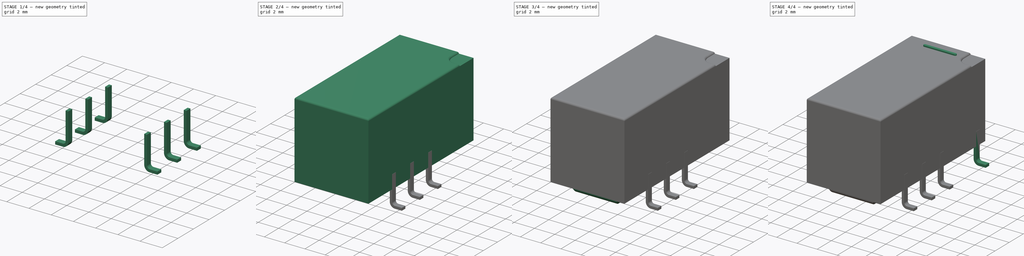
[diagram: build sequence overview — one tinted view per stage of 4, left to right]
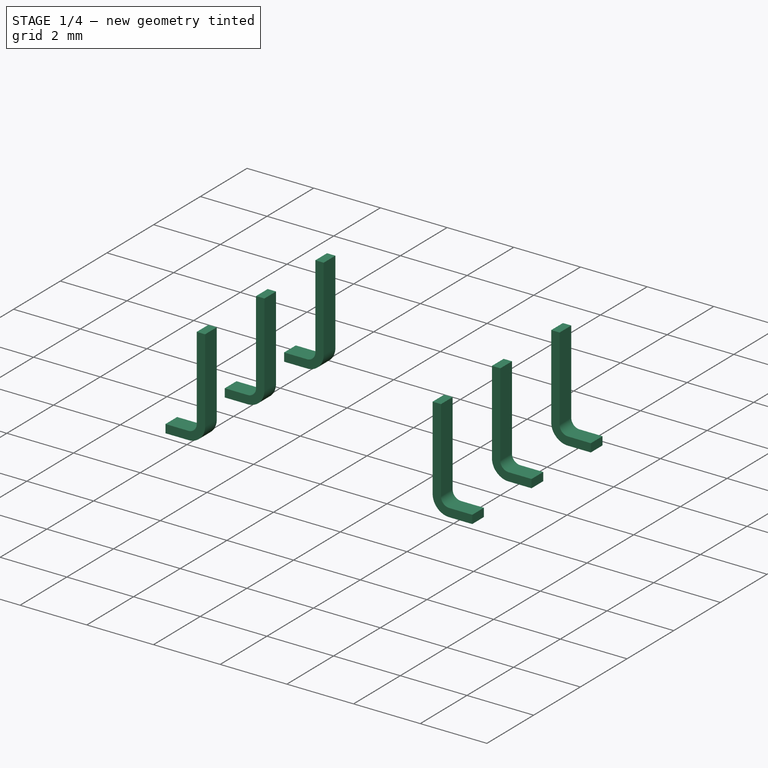
[diagram: stage 1 of 4 — iso view after this stage's code; geometry added in this stage tinted green]
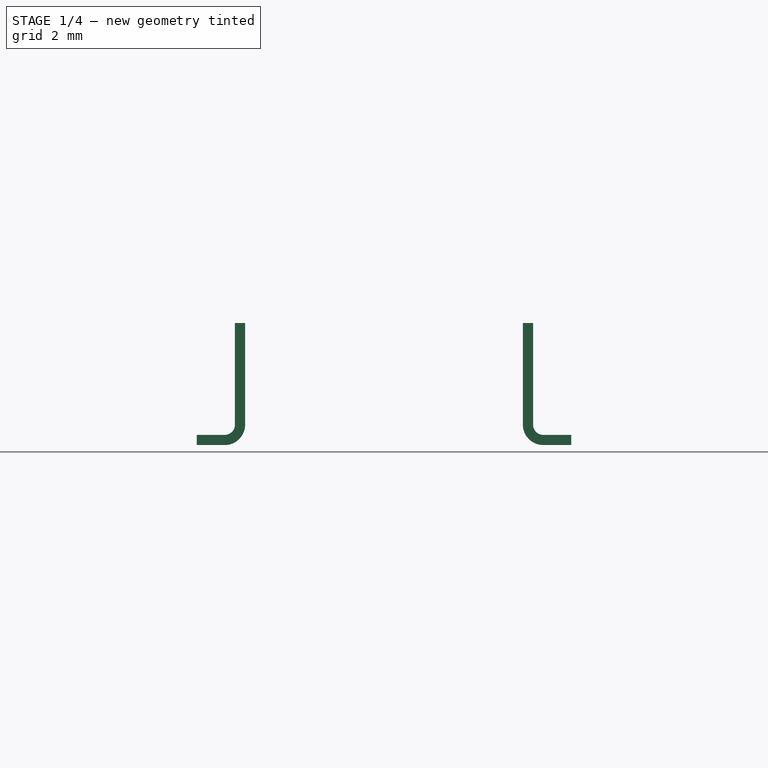
[diagram: stage 1 of 4 — front view after this stage's code; geometry added in this stage tinted green]
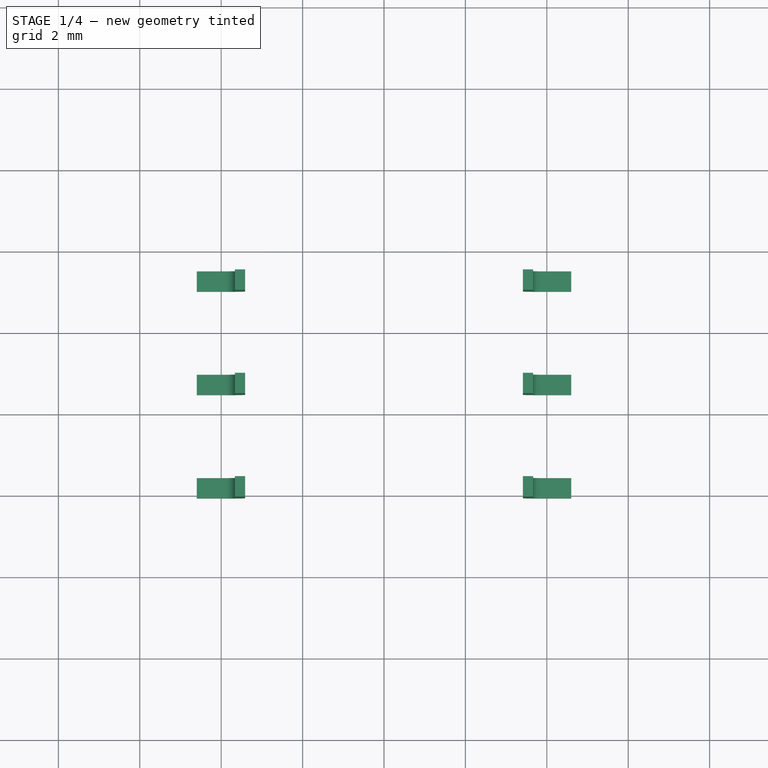
[diagram: stage 1 of 4 — top view after this stage's code; geometry added in this stage tinted green]
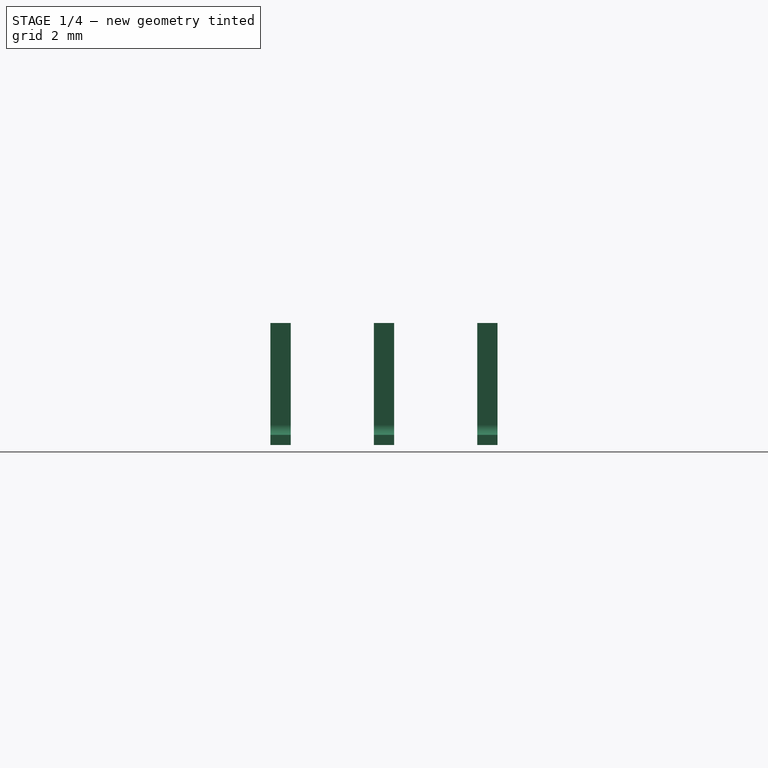
[diagram: stage 1 of 4 — right view after this stage's code; geometry added in this stage tinted green]
FCSTD DOCUMENT  (FreeCAD 0.16R6712 (Git))
Label: Relay_DPDT_Omron_G6S-2F
License: All rights reserved
LicenseURL: http://en.wikipedia.org/wiki/All_rights_reserved
objects: Sketcher::SketchObject×8, PartDesign::Pad×7, Part::Feature×3, PartDesign::Fillet×2, App::DocumentObjectGroup×1, PartDesign::Pocket×1, Part::MultiFuse×1
note: 30 computed .brp shape members not serialized (recipe doc carries the construction recipe); baked Part::Feature solids carry a one-line shape summary decoded from their .brp

FEATURE [Sketcher::SketchObject] Sketch011
  Placement = pos=(0,1.27,0) rot=(1,0,0;1.5708rad)
  expr: Placement.Base.y = 1.27
  sketch-geometry (21):
    g0: LineSegment StartX=-4.6 StartY=0 StartZ=0 EndX=-3.9125 EndY=0 EndZ=0
    g1: LineSegment StartX=-3.9125 StartY=0.25 StartZ=0 EndX=-4.6 EndY=0.25 EndZ=0
    g2: LineSegment StartX=-4.6 StartY=0.25 StartZ=0 EndX=-4.6 EndY=0 EndZ=0
    g3: LineSegment StartX=-3.6625 StartY=3 StartZ=0 EndX=-3.4125 EndY=3 EndZ=0
    g4: LineSegment StartX=-3.4125 StartY=3 StartZ=0 EndX=-3.4125 EndY=0.5 EndZ=0
    g5: LineSegment StartX=-3.6625 StartY=0.5 StartZ=0 EndX=-3.6625 EndY=3 EndZ=0
    g6: ArcOfCircle CenterX=-3.9125 CenterY=0.5 CenterZ=0 NormalX=0 NormalY=0 NormalZ=1 Radius=0.25 StartAngle=4.71239 EndAngle=6.28319
    g7: LineSegment [constr] StartX=-3.9125 StartY=0.25 StartZ=0 EndX=-3.9125 EndY=0.5 EndZ=0
    g8: ArcOfCircle CenterX=-3.9125 CenterY=0.5 CenterZ=0 NormalX=0 NormalY=0 NormalZ=1 Radius=0.5 StartAngle=4.71239 EndAngle=6.28319
    g9: LineSegment StartX=3.9125 StartY=0 StartZ=0 EndX=4.6 EndY=0 EndZ=0
    g10: LineSegment StartX=4.6 StartY=0 StartZ=0 EndX=4.6 EndY=0.25 EndZ=0
    g11: LineSegment StartX=4.6 StartY=0.25 StartZ=0 EndX=3.9125 EndY=0.25 EndZ=0
    g12: LineSegment StartX=3.4125 StartY=3 StartZ=0 EndX=3.6625 EndY=3 EndZ=0
    g13: LineSegment StartX=3.6625 StartY=3 StartZ=0 EndX=3.6625 EndY=0.5 EndZ=0
    g14: LineSegment StartX=3.4125 StartY=0.5 StartZ=0 EndX=3.4125 EndY=3 EndZ=0
    g15: LineSegment [constr] StartX=3.9125 StartY=0.25 StartZ=0 EndX=3.9125 EndY=0.5 EndZ=0
    g16: ArcOfCircle CenterX=3.9125 CenterY=0.5 CenterZ=0 NormalX=0 NormalY=0 NormalZ=1 Radius=0.25 StartAngle=3.14159 EndAngle=4.71239
    g17: ArcOfCircle CenterX=3.9125 CenterY=0.5 CenterZ=0 NormalX=0 NormalY=0 NormalZ=1 Radius=0.5 StartAngle=3.14159 EndAngle=4.71239
    g18: LineSegment [constr] StartX=3.6625 StartY=0.5 StartZ=0 EndX=3.9125 EndY=0.5 EndZ=0
    g19: LineSegment [constr] StartX=-3.5375 StartY=3 StartZ=0 EndX=3.5375 EndY=3 EndZ=0
    g20: GeomPoint [constr] X=0 Y=3 Z=0
  constraints (59):
    c: Vertical(g2)
    c: PointOnObject(g0,g-1)
    c: Horizontal(g3)
    c: Coincident(g7,g1)
    c: Coincident(g7,g6)
    c: Vertical(g7)
    c: Radius(g6) = 0.25
    c: Equal(g4,g5)
    c: DistanceY(g-1,g3) = 3
    c: Coincident(g9,g10)
    c: Coincident(g10,g11)
    c: Horizontal(g9)
    c: Horizontal(g11)
    c: Vertical(g10)
    c: PointOnObject(g9,g-1)
    c: Coincident(g12,g13)
    c: Coincident(g14,g12)
    c: Horizontal(g12)
    c: Vertical(g13)
    c: Vertical(g14)
    c: Coincident(g15,g11)
    c: Vertical(g15)
    c: Coincident(g16,g15)
    c: Coincident(g16,g11)
    c: Coincident(g16,g13)
    c: Coincident(g17,g15)
    c: Coincident(g17,g9)
    c: Coincident(g17,g14)
    c: Equal(g16,g6)
    c: Equal(g11,g1)
    c: Coincident(g18,g13)
    c: Coincident(g18,g15)
    c: Horizontal(g18)
    c: Horizontal(g19)
    c: Symmetric(g3,g3,g19)
    c: Coincident(g3,g5)
    c: Coincident(g3,g4)
    c: Equal(g2,g10)
    c: Coincident(g0,g2)
    c: Coincident(g1,g2)
    c: Coincident(g5,g6)
    c: Coincident(g6,g8)
    c: Horizontal(g1)
    c: Coincident(g1,g6)
    c: Vertical(g5)
    c: Vertical(g4)
    c: Coincident(g8,g0)
    c: Horizontal(g0)
    c: Coincident(g4,g8)
    c: DistanceY(g2,g2) = 0.25
    c: Equal(g0,g1)
    c: Tangent(g6,g5)
    c: Equal(g3,g2)
    c: Equal(g9,g11)
    c: Symmetric(g12,g12,g19)
    c: PointOnObject(g20,g-2)
    c: Symmetric(g19,g19,g20)
    c: DistanceX(g0,g9) = 9.2
    c: DistanceX(g19,g19) = 7.075
FEATURE [PartDesign::Pad] Pad008
  Length = 0.5
  Length2 = 100
  Midplane = true
  Placement = pos=(0,1.27,0) rot=(1,0,0;1.5708rad)
  Sketch = -> Sketch011
  Type = 0
FEATURE [Sketcher::SketchObject] Sketch012
  Placement = pos=(0,-1.27,0) rot=(1,0,0;1.5708rad)
  expr: Placement.Base.y = -1.27
  sketch-geometry (21):
    g0: LineSegment StartX=-4.6 StartY=0 StartZ=0 EndX=-3.9125 EndY=0 EndZ=0
    g1: LineSegment StartX=-3.9125 StartY=0.25 StartZ=0 EndX=-4.6 EndY=0.25 EndZ=0
    g2: LineSegment StartX=-4.6 StartY=0.25 StartZ=0 EndX=-4.6 EndY=0 EndZ=0
    g3: LineSegment StartX=-3.6625 StartY=3 StartZ=0 EndX=-3.4125 EndY=3 EndZ=0
    g4: LineSegment StartX=-3.4125 StartY=3 StartZ=0 EndX=-3.4125 EndY=0.5 EndZ=0
    g5: LineSegment StartX=-3.6625 StartY=0.5 StartZ=0 EndX=-3.6625 EndY=3 EndZ=0
    g6: ArcOfCircle CenterX=-3.9125 CenterY=0.5 CenterZ=0 NormalX=0 NormalY=0 NormalZ=1 Radius=0.25 StartAngle=4.71239 EndAngle=6.28319
    g7: LineSegment [constr] StartX=-3.9125 StartY=0.25 StartZ=0 EndX=-3.9125 EndY=0.5 EndZ=0
    g8: ArcOfCircle CenterX=-3.9125 CenterY=0.5 CenterZ=0 NormalX=0 NormalY=0 NormalZ=1 Radius=0.5 StartAngle=4.71239 EndAngle=6.28319
    g9: LineSegment StartX=3.9125 StartY=0 StartZ=0 EndX=4.6 EndY=0 EndZ=0
    g10: LineSegment StartX=4.6 StartY=0 StartZ=0 EndX=4.6 EndY=0.25 EndZ=0
    g11: LineSegment StartX=4.6 StartY=0.25 StartZ=0 EndX=3.9125 EndY=0.25 EndZ=0
    g12: LineSegment StartX=3.4125 StartY=3 StartZ=0 EndX=3.6625 EndY=3 EndZ=0
    g13: LineSegment StartX=3.6625 StartY=3 StartZ=0 EndX=3.6625 EndY=0.5 EndZ=0
    g14: LineSegment StartX=3.4125 StartY=0.5 StartZ=0 EndX=3.4125 EndY=3 EndZ=0
    g15: LineSegment [constr] StartX=3.9125 StartY=0.25 StartZ=0 EndX=3.9125 EndY=0.5 EndZ=0
    g16: ArcOfCircle CenterX=3.9125 CenterY=0.5 CenterZ=0 NormalX=0 NormalY=0 NormalZ=1 Radius=0.25 StartAngle=3.14159 EndAngle=4.71239
    g17: ArcOfCircle CenterX=3.9125 CenterY=0.5 CenterZ=0 NormalX=0 NormalY=0 NormalZ=1 Radius=0.5 StartAngle=3.14159 EndAngle=4.71239
    g18: LineSegment [constr] StartX=3.6625 StartY=0.5 StartZ=0 EndX=3.9125 EndY=0.5 EndZ=0
    g19: LineSegment [constr] StartX=-3.5375 StartY=3 StartZ=0 EndX=3.5375 EndY=3 EndZ=0
    g20: GeomPoint [constr] X=0 Y=3 Z=0
  constraints (59):
    c: Vertical(g2)
    c: PointOnObject(g0,g-1)
    c: Horizontal(g3)
    c: Coincident(g7,g1)
    c: Coincident(g7,g6)
    c: Vertical(g7)
    c: Radius(g6) = 0.25
    c: Equal(g4,g5)
    c: DistanceY(g-1,g3) = 3
    c: Coincident(g9,g10)
    c: Coincident(g10,g11)
    c: Horizontal(g9)
    c: Horizontal(g11)
    c: Vertical(g10)
    c: PointOnObject(g9,g-1)
    c: Coincident(g12,g13)
    c: Coincident(g14,g12)
    c: Horizontal(g12)
    c: Vertical(g13)
    c: Vertical(g14)
    c: Coincident(g15,g11)
    c: Vertical(g15)
    c: Coincident(g16,g15)
    c: Coincident(g16,g11)
    c: Coincident(g16,g13)
    c: Coincident(g17,g15)
    c: Coincident(g17,g9)
    c: Coincident(g17,g14)
    c: Equal(g16,g6)
    c: Equal(g11,g1)
    c: Coincident(g18,g13)
    c: Coincident(g18,g15)
    c: Horizontal(g18)
    c: Horizontal(g19)
    c: Symmetric(g3,g3,g19)
    c: Coincident(g3,g5)
    c: Coincident(g3,g4)
    c: Equal(g2,g10)
    c: Coincident(g0,g2)
    c: Coincident(g1,g2)
    c: Coincident(g5,g6)
    c: Coincident(g6,g8)
    c: Horizontal(g1)
    c: Coincident(g1,g6)
    c: Vertical(g5)
    c: Vertical(g4)
    c: Coincident(g8,g0)
    c: Horizontal(g0)
    c: Coincident(g4,g8)
    c: DistanceY(g2,g2) = 0.25
    c: Equal(g0,g1)
    c: Tangent(g6,g5)
    c: Equal(g3,g2)
    c: Equal(g9,g11)
    c: Symmetric(g12,g12,g19)
    c: PointOnObject(g20,g-2)
    c: Symmetric(g19,g19,g20)
    c: DistanceX(g0,g9) = 9.2
    c: DistanceX(g19,g19) = 7.075
FEATURE [PartDesign::Pad] Pad009
  Length = 0.5
  Length2 = 100
  Midplane = true
  Placement = pos=(0,-1.27,0) rot=(1,0,0;1.5708rad)
  Sketch = -> Sketch012
  Type = 0
FEATURE [Sketcher::SketchObject] Sketch014
  Placement = pos=(0,-3.81,0) rot=(1,0,0;1.5708rad)
  expr: Placement.Base.y = -1.27 - 2.54
  sketch-geometry (21):
    g0: LineSegment StartX=-4.6 StartY=0 StartZ=0 EndX=-3.9125 EndY=0 EndZ=0
    g1: LineSegment StartX=-3.9125 StartY=0.25 StartZ=0 EndX=-4.6 EndY=0.25 EndZ=0
    g2: LineSegment StartX=-4.6 StartY=0.25 StartZ=0 EndX=-4.6 EndY=0 EndZ=0
    g3: LineSegment StartX=-3.6625 StartY=3 StartZ=0 EndX=-3.4125 EndY=3 EndZ=0
    g4: LineSegment StartX=-3.4125 StartY=3 StartZ=0 EndX=-3.4125 EndY=0.5 EndZ=0
    g5: LineSegment StartX=-3.6625 StartY=0.5 StartZ=0 EndX=-3.6625 EndY=3 EndZ=0
    g6: ArcOfCircle CenterX=-3.9125 CenterY=0.5 CenterZ=0 NormalX=0 NormalY=0 NormalZ=1 Radius=0.25 StartAngle=4.71239 EndAngle=6.28319
    g7: LineSegment [constr] StartX=-3.9125 StartY=0.25 StartZ=0 EndX=-3.9125 EndY=0.5 EndZ=0
    g8: ArcOfCircle CenterX=-3.9125 CenterY=0.5 CenterZ=0 NormalX=0 NormalY=0 NormalZ=1 Radius=0.5 StartAngle=4.71239 EndAngle=6.28319
    g9: LineSegment StartX=3.9125 StartY=0 StartZ=0 EndX=4.6 EndY=0 EndZ=0
    g10: LineSegment StartX=4.6 StartY=0 StartZ=0 EndX=4.6 EndY=0.25 EndZ=0
    g11: LineSegment StartX=4.6 StartY=0.25 StartZ=0 EndX=3.9125 EndY=0.25 EndZ=0
    g12: LineSegment StartX=3.4125 StartY=3 StartZ=0 EndX=3.6625 EndY=3 EndZ=0
    g13: LineSegment StartX=3.6625 StartY=3 StartZ=0 EndX=3.6625 EndY=0.5 EndZ=0
    g14: LineSegment StartX=3.4125 StartY=0.5 StartZ=0 EndX=3.4125 EndY=3 EndZ=0
    g15: LineSegment [constr] StartX=3.9125 StartY=0.25 StartZ=0 EndX=3.9125 EndY=0.5 EndZ=0
    g16: ArcOfCircle CenterX=3.9125 CenterY=0.5 CenterZ=0 NormalX=0 NormalY=0 NormalZ=1 Radius=0.25 StartAngle=3.14159 EndAngle=4.71239
    g17: ArcOfCircle CenterX=3.9125 CenterY=0.5 CenterZ=0 NormalX=0 NormalY=0 NormalZ=1 Radius=0.5 StartAngle=3.14159 EndAngle=4.71239
    g18: LineSegment [constr] StartX=3.6625 StartY=0.5 StartZ=0 EndX=3.9125 EndY=0.5 EndZ=0
    g19: LineSegment [constr] StartX=-3.5375 StartY=3 StartZ=0 EndX=3.5375 EndY=3 EndZ=0
    g20: GeomPoint [constr] X=0 Y=3 Z=0
  constraints (59):
    c: Vertical(g2)
    c: PointOnObject(g0,g-1)
    c: Horizontal(g3)
    c: Coincident(g7,g1)
    c: Coincident(g7,g6)
    c: Vertical(g7)
    c: Radius(g6) = 0.25
    c: Equal(g4,g5)
    c: DistanceY(g-1,g3) = 3
    c: Coincident(g9,g10)
    c: Coincident(g10,g11)
    c: Horizontal(g9)
    c: Horizontal(g11)
    c: Vertical(g10)
    c: PointOnObject(g9,g-1)
    c: Coincident(g12,g13)
    c: Coincident(g14,g12)
    c: Horizontal(g12)
    c: Vertical(g13)
    c: Vertical(g14)
    c: Coincident(g15,g11)
    c: Vertical(g15)
    c: Coincident(g16,g15)
    c: Coincident(g16,g11)
    c: Coincident(g16,g13)
    c: Coincident(g17,g15)
    c: Coincident(g17,g9)
    c: Coincident(g17,g14)
    c: Equal(g16,g6)
    c: Equal(g11,g1)
    c: Coincident(g18,g13)
    c: Coincident(g18,g15)
    c: Horizontal(g18)
    c: Horizontal(g19)
    c: Symmetric(g3,g3,g19)
    c: Coincident(g3,g5)
    c: Coincident(g3,g4)
    c: Equal(g2,g10)
    c: Coincident(g0,g2)
    c: Coincident(g1,g2)
    c: Coincident(g5,g6)
    c: Coincident(g6,g8)
    c: Horizontal(g1)
    c: Coincident(g1,g6)
    c: Vertical(g5)
    c: Vertical(g4)
    c: Coincident(g8,g0)
    c: Horizontal(g0)
    c: Coincident(g4,g8)
    c: DistanceY(g2,g2) = 0.25
    c: Equal(g0,g1)
    c: Tangent(g6,g5)
    c: Equal(g3,g2)
    c: Equal(g9,g11)
    c: Symmetric(g12,g12,g19)
    c: PointOnObject(g20,g-2)
    c: Symmetric(g19,g19,g20)
    c: DistanceX(g0,g9) = 9.2
    c: DistanceX(g19,g19) = 7.075
FEATURE [PartDesign::Pad] Pad011
  Length = 0.5
  Length2 = 100
  Midplane = true
  Placement = pos=(0,-3.81,0) rot=(1,0,0;1.5708rad)
  Sketch = -> Sketch014
  Type = 0
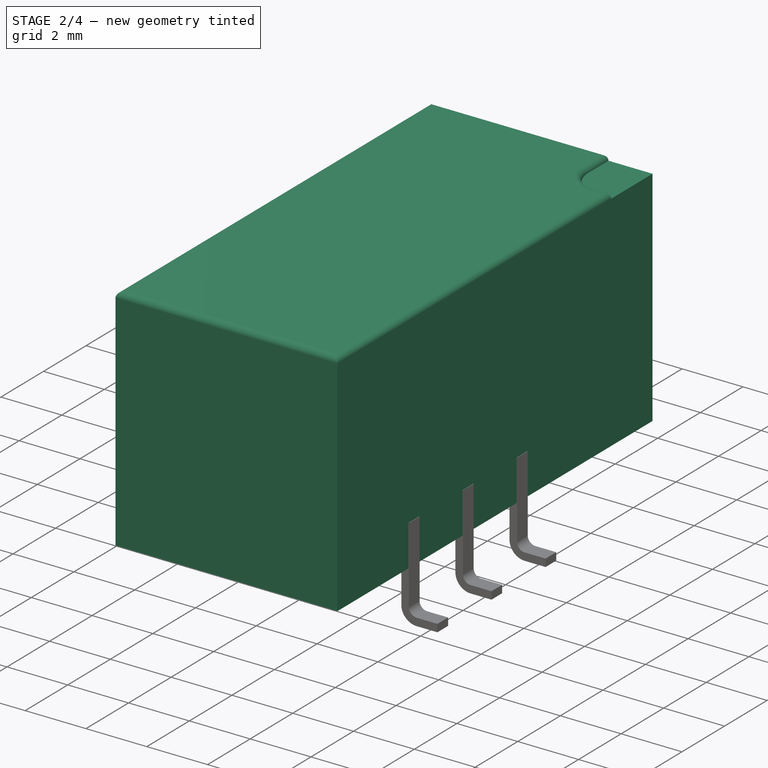
[diagram: stage 2 of 4 — iso view after this stage's code; geometry added in this stage tinted green]
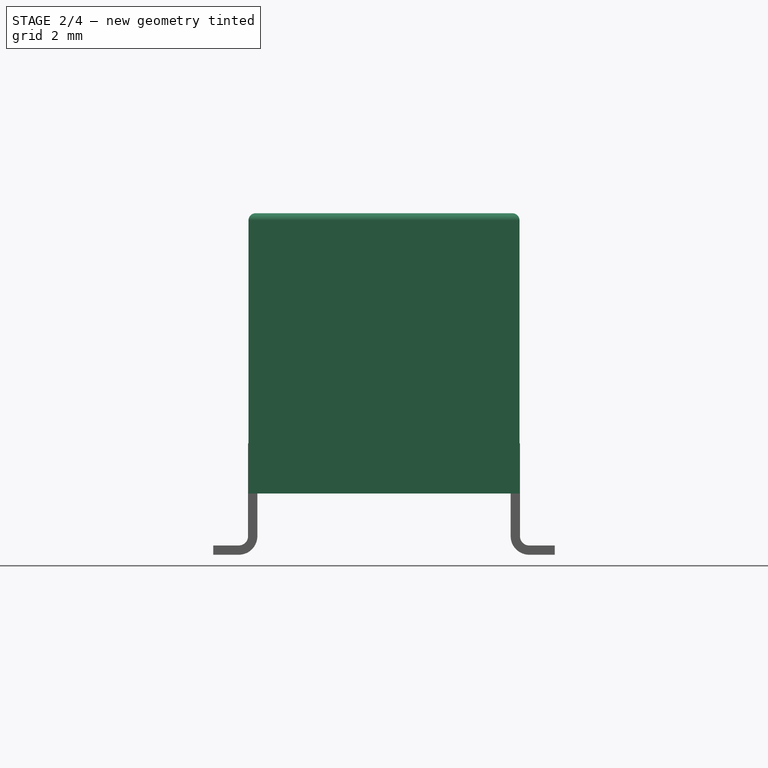
[diagram: stage 2 of 4 — front view after this stage's code; geometry added in this stage tinted green]
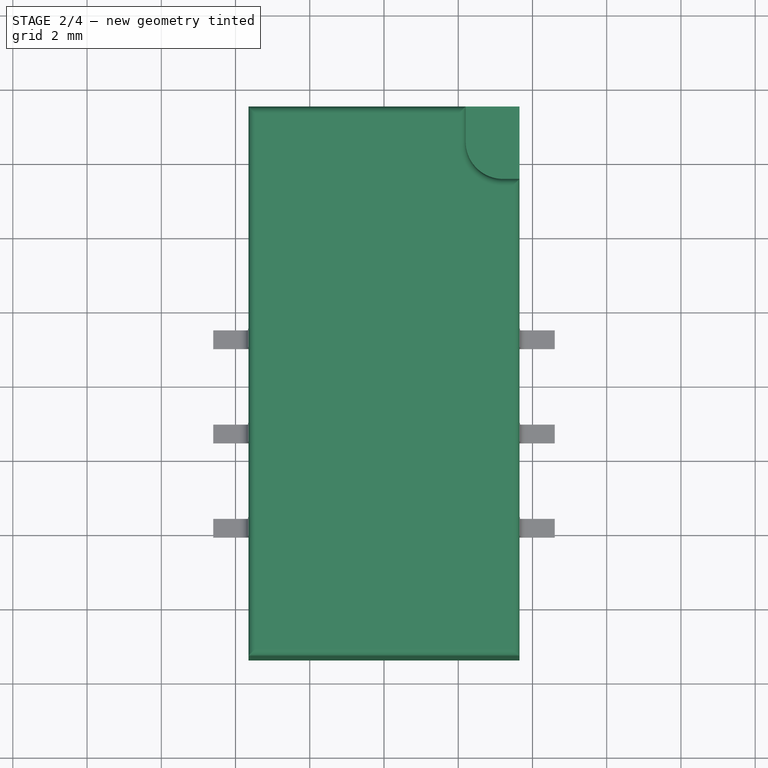
[diagram: stage 2 of 4 — top view after this stage's code; geometry added in this stage tinted green]
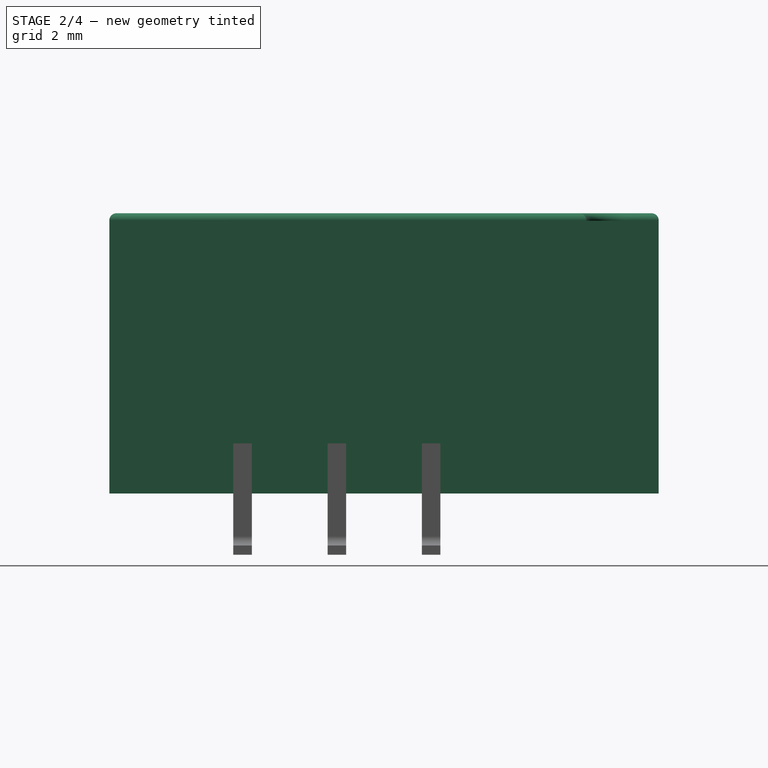
[diagram: stage 2 of 4 — right view after this stage's code; geometry added in this stage tinted green]
FEATURE [Sketcher::SketchObject] Sketch
  Placement = pos=(0,0,1.65) rot=(0,0,1;0rad)
  sketch-geometry (6):
    g0: LineSegment StartX=-3.65 StartY=7.4 StartZ=0 EndX=3.65 EndY=7.4 EndZ=0
    g1: LineSegment StartX=3.65 StartY=7.4 StartZ=0 EndX=3.65 EndY=-7.4 EndZ=0
    g2: LineSegment StartX=3.65 StartY=-7.4 StartZ=0 EndX=-3.65 EndY=-7.4 EndZ=0
    g3: LineSegment StartX=-3.65 StartY=-7.4 StartZ=0 EndX=-3.65 EndY=7.4 EndZ=0
    g4: GeomPoint [constr] X=0 Y=-7.4 Z=0
    g5: LineSegment [constr] StartX=0 StartY=-7.4 StartZ=0 EndX=0 EndY=7.4 EndZ=0
  constraints (16):
    c: Coincident(g0,g1)
    c: Coincident(g1,g2)
    c: Coincident(g2,g3)
    c: Coincident(g3,g0)
    c: Horizontal(g0)
    c: Horizontal(g2)
    c: Vertical(g1)
    c: Vertical(g3)
    c: PointOnObject(g4,g-2)
    c: Symmetric(g2,g2,g4)
    c: PointOnObject(g5,g0)
    c: Symmetric(g5,g5,g-1)
    c: Vertical(g5)
    c: Coincident(g5,g4)
    c: DistanceY(g1,g1) = 14.8
    c: DistanceX(g0,g0) = 7.3
FEATURE [PartDesign::Pad] Pad
  Length = 7.55
  Length2 = 100
  Placement = pos=(0,0,1.65) rot=(0,0,1;0rad)
  Sketch = -> Sketch
  Type = 0
  expr: Length = 9.199999999999999 - 1.65
FEATURE [Sketcher::SketchObject] Sketch010
  ExternalGeometry = -> [Pad]
  Placement = pos=(0,0,9.2) rot=(0,0,1;0rad)
  Support = -> Pad [Face6]
  sketch-geometry (7):
    g0: ArcOfCircle CenterX=3.2 CenterY=6.45 CenterZ=0 NormalX=0 NormalY=0 NormalZ=1 Radius=1 StartAngle=3.14159 EndAngle=4.71239
    g1: LineSegment StartX=2.2 StartY=6.45 StartZ=0 EndX=2.2 EndY=7.45 EndZ=0
    g2: LineSegment StartX=2.2 StartY=7.45 StartZ=0 EndX=3.7 EndY=7.45 EndZ=0
    g3: LineSegment StartX=3.7 StartY=7.45 StartZ=0 EndX=3.7 EndY=5.45 EndZ=0
    g4: LineSegment StartX=3.7 StartY=5.45 StartZ=0 EndX=3.2 EndY=5.45 EndZ=0
    g5: LineSegment [constr] StartX=3.2 StartY=6.45 StartZ=0 EndX=3.2 EndY=5.45 EndZ=0
    g6: LineSegment [constr] StartX=3.2 StartY=6.45 StartZ=0 EndX=2.2 EndY=6.45 EndZ=0
  constraints (20):
    c: Coincident(g1,g0)
    c: Vertical(g1)
    c: Coincident(g2,g1)
    c: Horizontal(g2)
    c: Coincident(g3,g2)
    c: Vertical(g3)
    c: Coincident(g4,g3)
    c: Horizontal(g4)
    c: Coincident(g0,g4)
    c: Coincident(g5,g0)
    c: Coincident(g6,g0)
    c: Coincident(g6,g0)
    c: Horizontal(g6)
    c: Coincident(g0,g5)
    c: Vertical(g5)
    c: DistanceX(g-4,g2) = 0.05
    c: DistanceY(g-4,g2) = 0.05
    c: DistanceY(g3,g3) = 2
    c: DistanceX(g2,g2) = 1.5
    c: Radius(g0) = 1
FEATURE [PartDesign::Pocket] Pocket
  Length = 0.2
  Placement = pos=(0,0,1.65) rot=(0,0,1;0rad)
  Sketch = -> Sketch010
  Type = 0
FEATURE [PartDesign::Fillet] Fillet001
  Base = -> Pocket [Edge5,Edge17,Edge19,Edge20,Edge11,Edge21,Edge22]
  Placement = pos=(0,0,1.65) rot=(0,0,1;0rad)
  Radius = 0.19
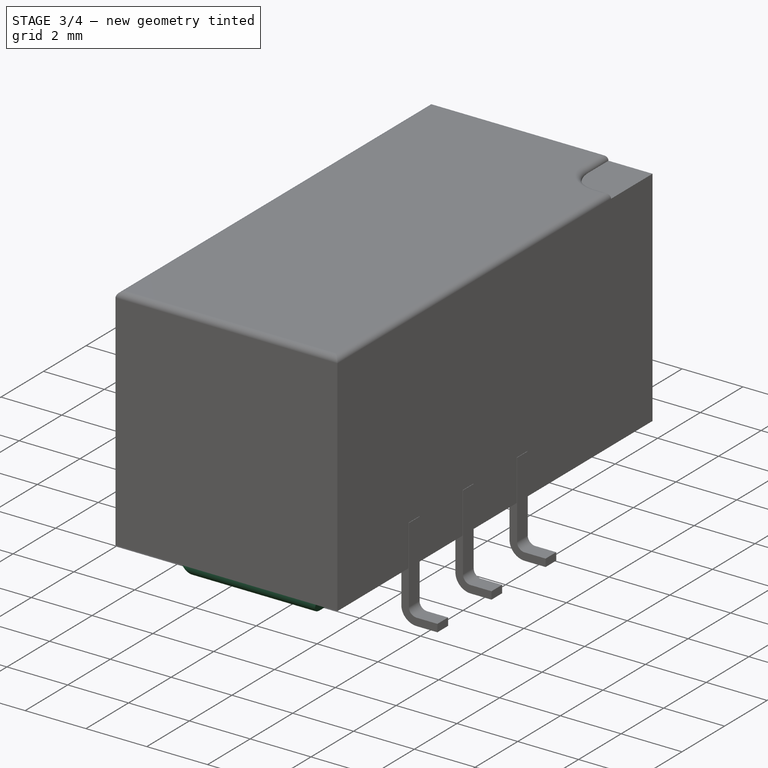
[diagram: stage 3 of 4 — iso view after this stage's code; geometry added in this stage tinted green]
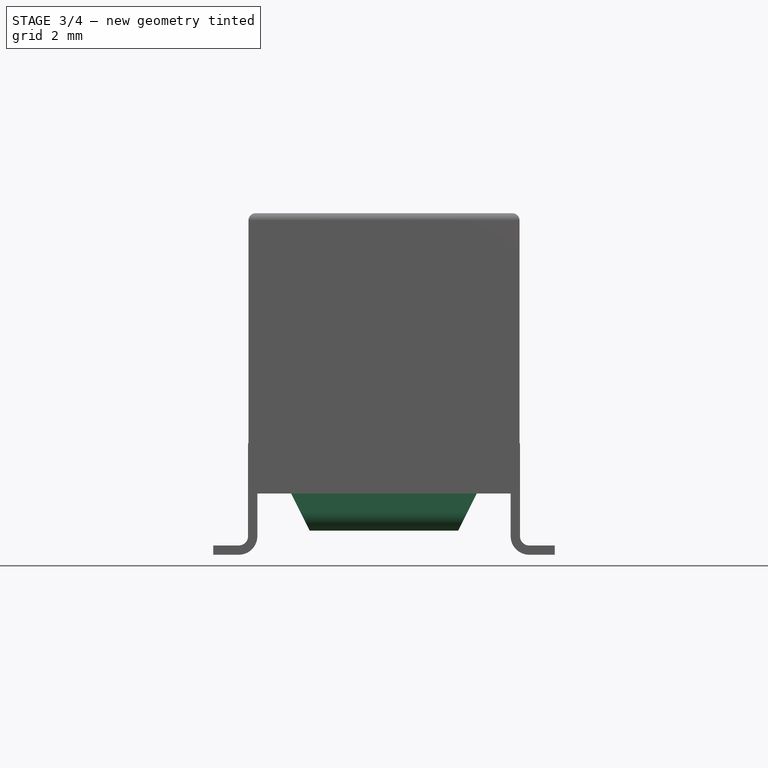
[diagram: stage 3 of 4 — front view after this stage's code; geometry added in this stage tinted green]
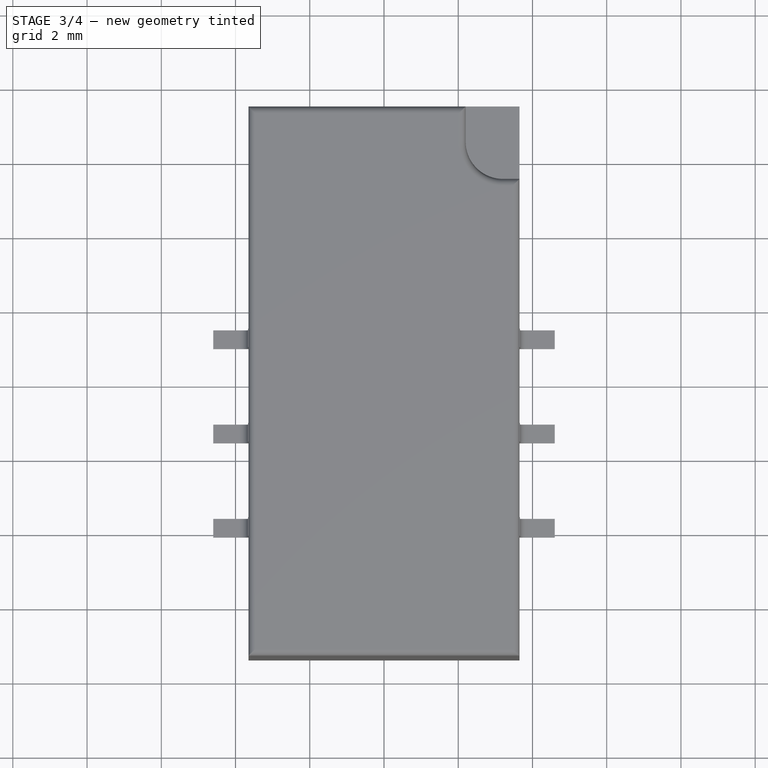
[diagram: stage 3 of 4 — top view after this stage's code; geometry added in this stage tinted green]
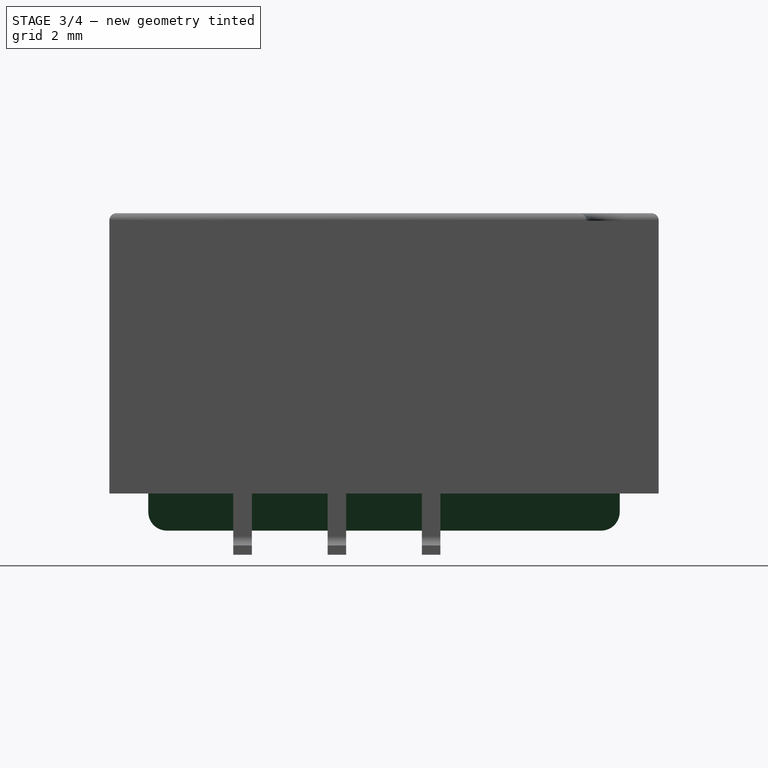
[diagram: stage 3 of 4 — right view after this stage's code; geometry added in this stage tinted green]
FEATURE [Sketcher::SketchObject] Sketch009
  Placement = pos=(0,0,1.65) rot=(1,0,0;1.5708rad)
  sketch-geometry (5):
    g0: LineSegment StartX=-2.5 StartY=0 StartZ=0 EndX=-2 EndY=-1 EndZ=0
    g1: LineSegment StartX=-2 StartY=-1 StartZ=0 EndX=2 EndY=-1 EndZ=0
    g2: LineSegment StartX=2 StartY=-1 StartZ=0 EndX=2.5 EndY=0 EndZ=0
    g3: LineSegment StartX=2.5 StartY=0 StartZ=0 EndX=-2.5 EndY=0 EndZ=0
    g4: LineSegment [constr] StartX=0 StartY=0 StartZ=0 EndX=0 EndY=-1 EndZ=0
  constraints (16):
    c: Coincident(g0,g1)
    c: Coincident(g0,g3)
    c: Coincident(g1,g2)
    c: Coincident(g2,g3)
    c: DistanceX(g3,g3) = 5
    c: DistanceX(g1,g1) = 4
    c: PointOnObject(g4,g3)
    c: PointOnObject(g4,g1)
    c: Vertical(g4)
    c: Symmetric(g3,g3,g4)
    c: Symmetric(g1,g1,g4)
    c: DistanceY(g0,g0) = 1
    c: Horizontal(g3)
    c: PointOnObject(g0,g-1)
    c: Horizontal(g1)
    c: PointOnObject(g4,g-2)
FEATURE [PartDesign::Pad] Pad007
  Length = 12.7
  Length2 = 100
  Midplane = true
  Placement = pos=(0,0,1.65) rot=(1,0,0;1.5708rad)
  Reversed = true
  Sketch = -> Sketch009
  Type = 0
  expr: Length = 2.54 * 2.5 * 2
FEATURE [Part::Feature] FusionAxisZ1  label="Z"
  shape: bbox 0.8 x 0.8 x 14 mm, 8 faces (baked)
FEATURE [Part::Feature] FusionAxisY1  label="Y"
  Placement = pos=(0,0,0.05) rot=(-1,0,0;1.5708rad)
  shape: bbox 0.8 x 14 x 0.8 mm, 8 faces (baked)
FEATURE [Part::Feature] FusionAxisX1  label="X"
  Placement = pos=(0,-0.05,0) rot=(0,1,0;1.5708rad)
  shape: bbox 14 x 0.8 x 0.8 mm, 8 faces (baked)
FEATURE [App::DocumentObjectGroup] axis
  Group = -> [FusionAxisZ1,FusionAxisY1,FusionAxisX1]
FEATURE [PartDesign::Fillet] Fillet
  Base = -> Pad007 [Edge7,Edge6]
  Placement = pos=(0,0,1.65) rot=(1,0,0;1.5708rad)
  Radius = 0.5
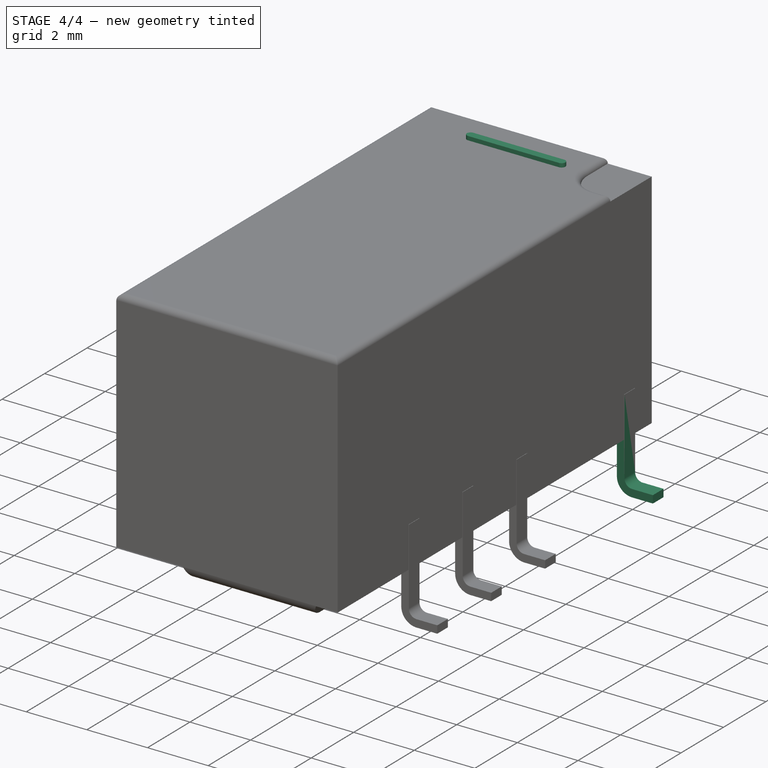
[diagram: stage 4 of 4 — iso view after this stage's code; geometry added in this stage tinted green]
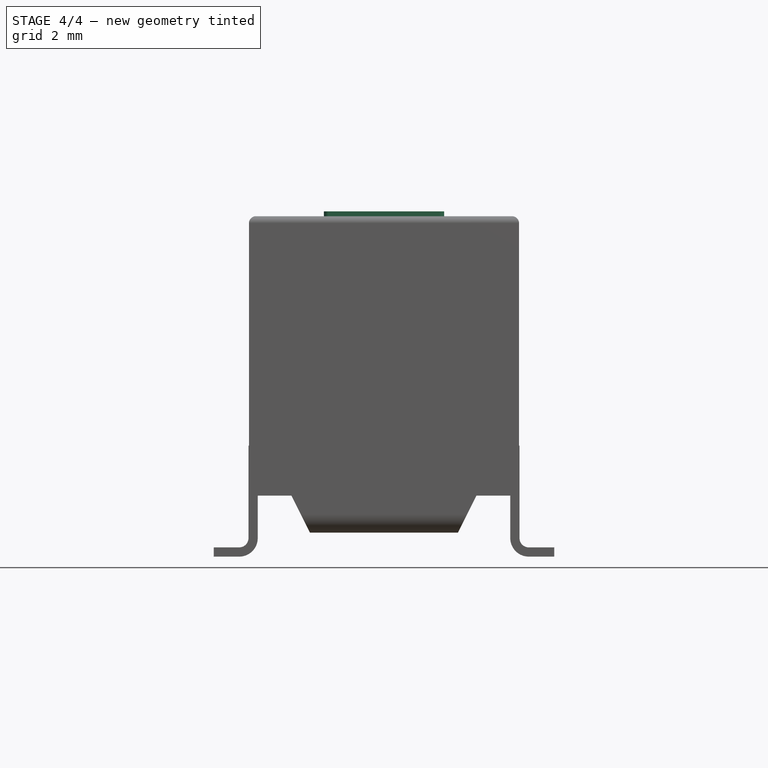
[diagram: stage 4 of 4 — front view after this stage's code; geometry added in this stage tinted green]
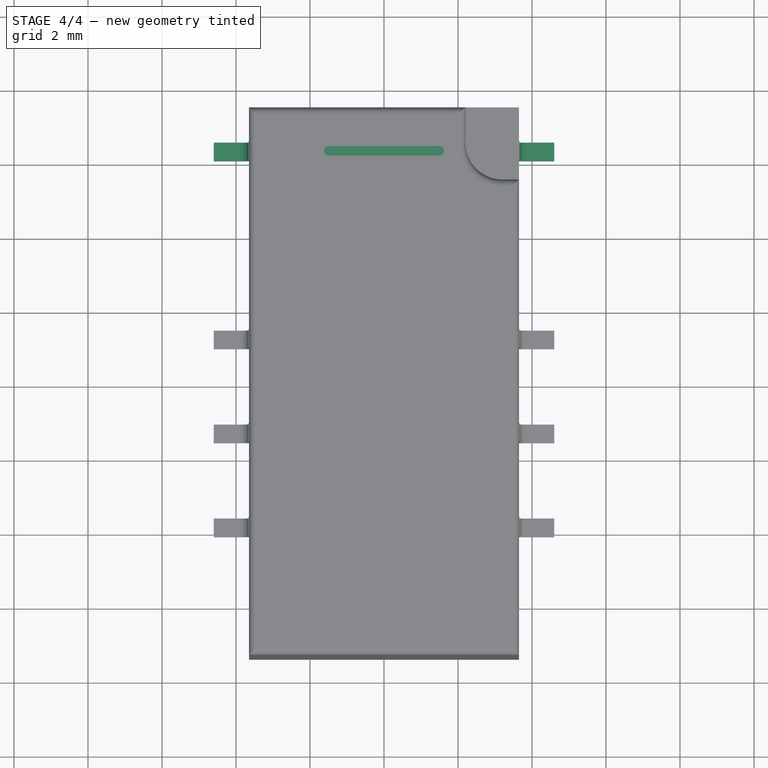
[diagram: stage 4 of 4 — top view after this stage's code; geometry added in this stage tinted green]
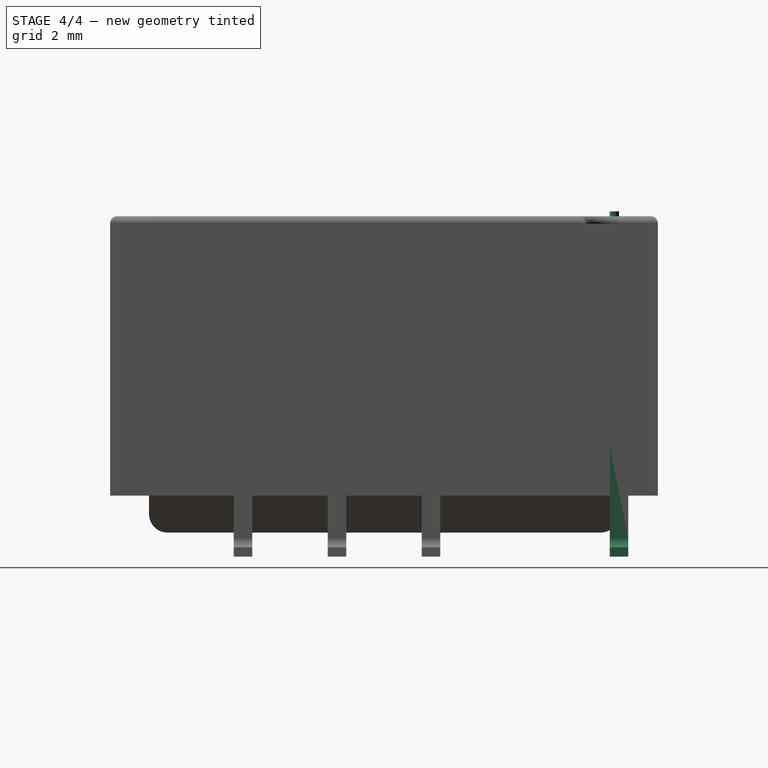
[diagram: stage 4 of 4 — right view after this stage's code; geometry added in this stage tinted green]
FEATURE [Sketcher::SketchObject] Sketch001
  Placement = pos=(-1.5,6.35,9.15) rot=(0,0,-1;1.5708rad)
  expr: Placement.Base.y = 5.08 + 1.27
  sketch-geometry (6):
    g0: LineSegment [constr] StartX=0 StartY=0 StartZ=0 EndX=0.25 EndY=0 EndZ=0
    g1: LineSegment StartX=0.25 StartY=0 StartZ=0 EndX=0.25 EndY=3 EndZ=0
    g2: LineSegment [constr] StartX=0.25 StartY=3 StartZ=0 EndX=0 EndY=3 EndZ=0
    g3: LineSegment StartX=0 StartY=3 StartZ=0 EndX=0 EndY=0 EndZ=0
    g4: ArcOfCircle CenterX=0.125 CenterY=3 CenterZ=0 NormalX=0 NormalY=0 NormalZ=1 Radius=0.125 StartAngle=0 EndAngle=3.14159
    g5: ArcOfCircle CenterX=0.125 CenterY=0 CenterZ=0 NormalX=0 NormalY=0 NormalZ=1 Radius=0.125 StartAngle=3.14159 EndAngle=6.28319
  constraints (17):
    c: Coincident(g0,g1)
    c: Coincident(g1,g2)
    c: Coincident(g2,g3)
    c: Coincident(g3,g0)
    c: Horizontal(g0)
    c: Horizontal(g2)
    c: Vertical(g1)
    c: Vertical(g3)
    c: Coincident(g0,g-1)
    c: DistanceY(g1,g1) = 3
    c: DistanceX(g2,g2) = 0.25
    c: PointOnObject(g4,g2)
    c: Coincident(g4,g2)
    c: Coincident(g4,g1)
    c: PointOnObject(g5,g0)
    c: Coincident(g5,g-1)
    c: Coincident(g5,g0)
FEATURE [PartDesign::Pad] Pad001
  Length = 0.18
  Length2 = 100
  Placement = pos=(-1.5,6.35,9.15) rot=(0,0,-1;1.5708rad)
  Sketch = -> Sketch001
  Type = 0
FEATURE [Sketcher::SketchObject] Sketch004
  Placement = pos=(0,6.35,0) rot=(1,0,0;1.5708rad)
  expr: Placement.Base.y = 5.08 + 1.27
  sketch-geometry (21):
    g0: LineSegment StartX=-4.6 StartY=0 StartZ=0 EndX=-3.9125 EndY=0 EndZ=0
    g1: LineSegment StartX=-3.9125 StartY=0.25 StartZ=0 EndX=-4.6 EndY=0.25 EndZ=0
    g2: LineSegment StartX=-4.6 StartY=0.25 StartZ=0 EndX=-4.6 EndY=0 EndZ=0
    g3: LineSegment StartX=-3.6625 StartY=3 StartZ=0 EndX=-3.4125 EndY=3 EndZ=0
    g4: LineSegment StartX=-3.4125 StartY=3 StartZ=0 EndX=-3.4125 EndY=0.5 EndZ=0
    g5: LineSegment StartX=-3.6625 StartY=0.5 StartZ=0 EndX=-3.6625 EndY=3 EndZ=0
    g6: ArcOfCircle CenterX=-3.9125 CenterY=0.5 CenterZ=0 NormalX=0 NormalY=0 NormalZ=1 Radius=0.25 StartAngle=4.71239 EndAngle=6.28319
    g7: LineSegment [constr] StartX=-3.9125 StartY=0.25 StartZ=0 EndX=-3.9125 EndY=0.5 EndZ=0
    g8: ArcOfCircle CenterX=-3.9125 CenterY=0.5 CenterZ=0 NormalX=0 NormalY=0 NormalZ=1 Radius=0.5 StartAngle=4.71239 EndAngle=6.28319
    g9: LineSegment StartX=3.9125 StartY=0 StartZ=0 EndX=4.6 EndY=0 EndZ=0
    g10: LineSegment StartX=4.6 StartY=0 StartZ=0 EndX=4.6 EndY=0.25 EndZ=0
    g11: LineSegment StartX=4.6 StartY=0.25 StartZ=0 EndX=3.9125 EndY=0.25 EndZ=0
    g12: LineSegment StartX=3.4125 StartY=3 StartZ=0 EndX=3.6625 EndY=3 EndZ=0
    g13: LineSegment StartX=3.6625 StartY=3 StartZ=0 EndX=3.6625 EndY=0.5 EndZ=0
    g14: LineSegment StartX=3.4125 StartY=0.5 StartZ=0 EndX=3.4125 EndY=3 EndZ=0
    g15: LineSegment [constr] StartX=3.9125 StartY=0.25 StartZ=0 EndX=3.9125 EndY=0.5 EndZ=0
    g16: ArcOfCircle CenterX=3.9125 CenterY=0.5 CenterZ=0 NormalX=0 NormalY=0 NormalZ=1 Radius=0.25 StartAngle=3.14159 EndAngle=4.71239
    g17: ArcOfCircle CenterX=3.9125 CenterY=0.5 CenterZ=0 NormalX=0 NormalY=0 NormalZ=1 Radius=0.5 StartAngle=3.14159 EndAngle=4.71239
    g18: LineSegment [constr] StartX=3.6625 StartY=0.5 StartZ=0 EndX=3.9125 EndY=0.5 EndZ=0
    g19: LineSegment [constr] StartX=-3.5375 StartY=3 StartZ=0 EndX=3.5375 EndY=3 EndZ=0
    g20: GeomPoint [constr] X=0 Y=3 Z=0
  constraints (59):
    c: Vertical(g2)
    c: PointOnObject(g0,g-1)
    c: Horizontal(g3)
    c: Coincident(g7,g1)
    c: Coincident(g7,g6)
    c: Vertical(g7)
    c: Radius(g6) = 0.25
    c: Equal(g4,g5)
    c: DistanceY(g-1,g3) = 3
    c: Coincident(g9,g10)
    c: Coincident(g10,g11)
    c: Horizontal(g9)
    c: Horizontal(g11)
    c: Vertical(g10)
    c: PointOnObject(g9,g-1)
    c: Coincident(g12,g13)
    c: Coincident(g14,g12)
    c: Horizontal(g12)
    c: Vertical(g13)
    c: Vertical(g14)
    c: Coincident(g15,g11)
    c: Vertical(g15)
    c: Coincident(g16,g15)
    c: Coincident(g16,g11)
    c: Coincident(g16,g13)
    c: Coincident(g17,g15)
    c: Coincident(g17,g9)
    c: Coincident(g17,g14)
    c: Equal(g16,g6)
    c: Equal(g11,g1)
    c: Coincident(g18,g13)
    c: Coincident(g18,g15)
    c: Horizontal(g18)
    c: Horizontal(g19)
    c: Symmetric(g3,g3,g19)
    c: Coincident(g3,g5)
    c: Coincident(g3,g4)
    c: Equal(g2,g10)
    c: Coincident(g0,g2)
    c: Coincident(g1,g2)
    c: Coincident(g5,g6)
    c: Coincident(g6,g8)
    c: Horizontal(g1)
    c: Coincident(g1,g6)
    c: Vertical(g5)
    c: Vertical(g4)
    c: Coincident(g8,g0)
    c: Horizontal(g0)
    c: Coincident(g4,g8)
    c: DistanceY(g2,g2) = 0.25
    c: Equal(g0,g1)
    c: Tangent(g6,g5)
    c: Equal(g3,g2)
    c: Equal(g9,g11)
    c: Symmetric(g12,g12,g19)
    c: PointOnObject(g20,g-2)
    c: Symmetric(g19,g19,g20)
    c: DistanceX(g0,g9) = 9.2
    c: DistanceX(g19,g19) = 7.075
FEATURE [PartDesign::Pad] Pad002
  Length = 0.5
  Length2 = 100
  Midplane = true
  Placement = pos=(0,6.35,0) rot=(1,0,0;1.5708rad)
  Sketch = -> Sketch004
  Type = 0
FEATURE [Part::MultiFuse] Pad011_mp_cp  label="Relay_DPDT_Omron_G6S-2F"
  Shapes = -> [Pad011,Pad002,Pad009,Pad001,Pad008,Fillet,Fillet001]
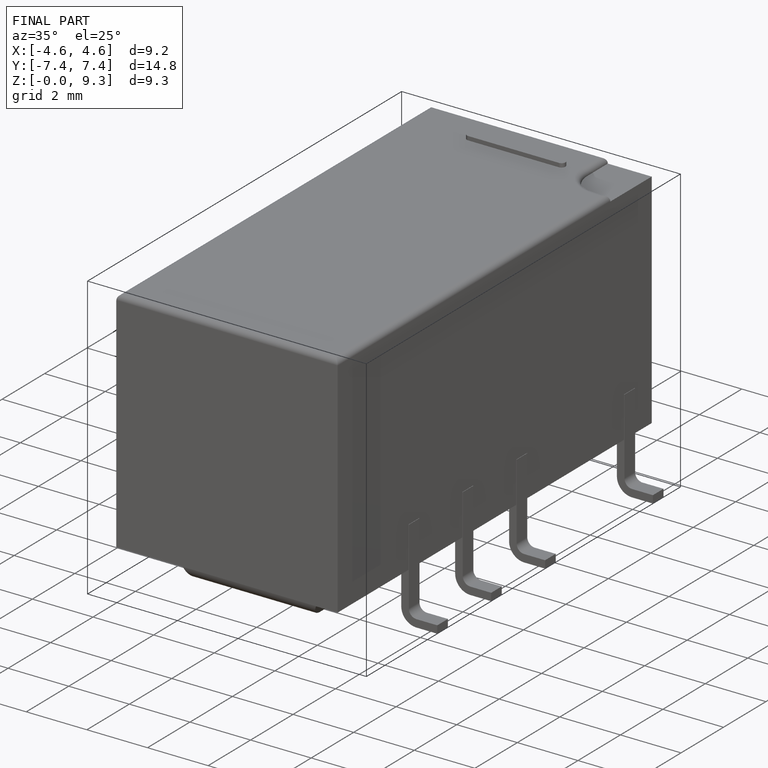
[diagram: finished part — iso view with bounding-box wireframe]
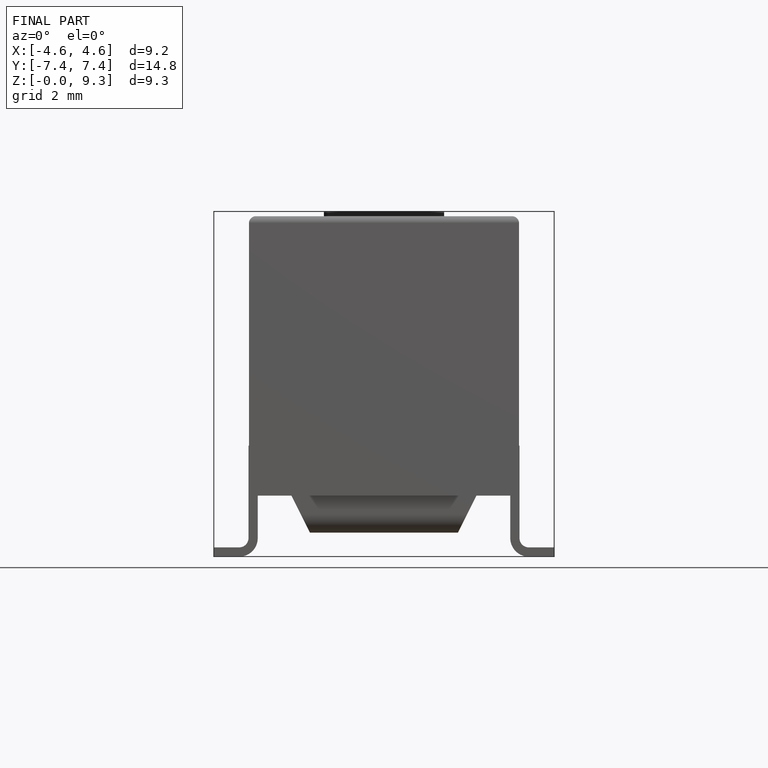
[diagram: finished part — front view with bounding-box wireframe]
